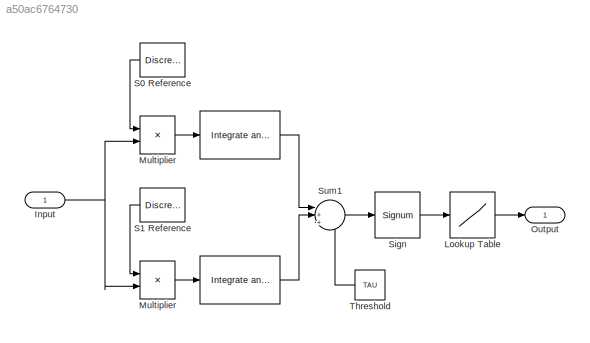
MODEL slx_a50ac6764730
KIND model
BLOCK [Reference]    REF=commfilt2/Integrate
and Dump
  LockScale = off
  Ports = [1, 1]
  SourceBlock = commfilt2/Integrate\nand Dump
  SourceType = Integrate and Dump
  accumFracLength = 30
  accumMode = Inherit via internal rule
  accumWordLength = 32
  nodump = off
  obssamples = 50
  offsetsamples = 0
  outputFracLength = 30
  outputMode = Same as accumulator
  outputWordLength = 32
  overflowMode = off
  roundingMode = Floor
BLOCK [Reference]     REF=commfilt2/Integrate
and Dump
  LockScale = off
  Ports = [1, 1]
  SourceBlock = commfilt2/Integrate\nand Dump
  SourceType = Integrate and Dump
  accumFracLength = 30
  accumMode = Inherit via internal rule
  accumWordLength = 32
  nodump = off
  obssamples = 50
  offsetsamples = 0
  outputFracLength = 30
  outputMode = Same as accumulator
  outputWordLength = 32
  overflowMode = off
  roundingMode = Floor
BLOCK [Product]  Multiplier
  InputSameDT = off
  OutDataTypeStr = Inherit: Inherit via internal rule
  Ports = [2, 1]
  SaturateOnIntegerOverflow = off
BLOCK [Inport] Input
  IconDisplay = Port number
BLOCK [Lookup] Lookup Table
  InputValues = [-1,0,1]
  SaturateOnIntegerOverflow = off
  Table = [0,0,5]
BLOCK [Product] Multiplier
  InputSameDT = off
  OutDataTypeStr = Inherit: Inherit via internal rule
  Ports = [2, 1]
  SaturateOnIntegerOverflow = off
BLOCK [Outport] Output
  IconDisplay = Port number
BLOCK [DiscretePulseGenerator] S0 Reference
  Period = 1e-3
  Ports = [0, 1]
  PulseType = Time based
  PulseWidth = 98
BLOCK [DiscretePulseGenerator] S1 Reference
  Period = 1e-3
  Ports = [0, 1]
  PulseType = Time based
  PulseWidth = 98
BLOCK [Signum] Sign
BLOCK [Sum] Sum1
  IconShape = round
  InputSameDT = off
  Inputs = |+++
  OutDataTypeStr = Inherit: Inherit via internal rule
  Ports = [3, 1]
  SaturateOnIntegerOverflow = off
BLOCK [Constant] Threshold
  Value = TAU
LINE   :1 -> Sum1:2
LINE  :1 -> Sum1:1
LINE  Multiplier:1 ->   :1
NET Input:1 ->  Multiplier:2, Multiplier:2
LINE Lookup Table:1 -> Output:1
LINE Multiplier:1 ->  :1
LINE S0 Reference:1 -> Multiplier:1
LINE S1 Reference:1 ->  Multiplier:1
LINE Sign:1 -> Lookup Table:1
LINE Sum1:1 -> Sign:1
LINE Threshold:1 -> Sum1:3
note: NET lines group one-source signal fan-out (src -> all destinations, sorted); 1:1 wires keep LINE
